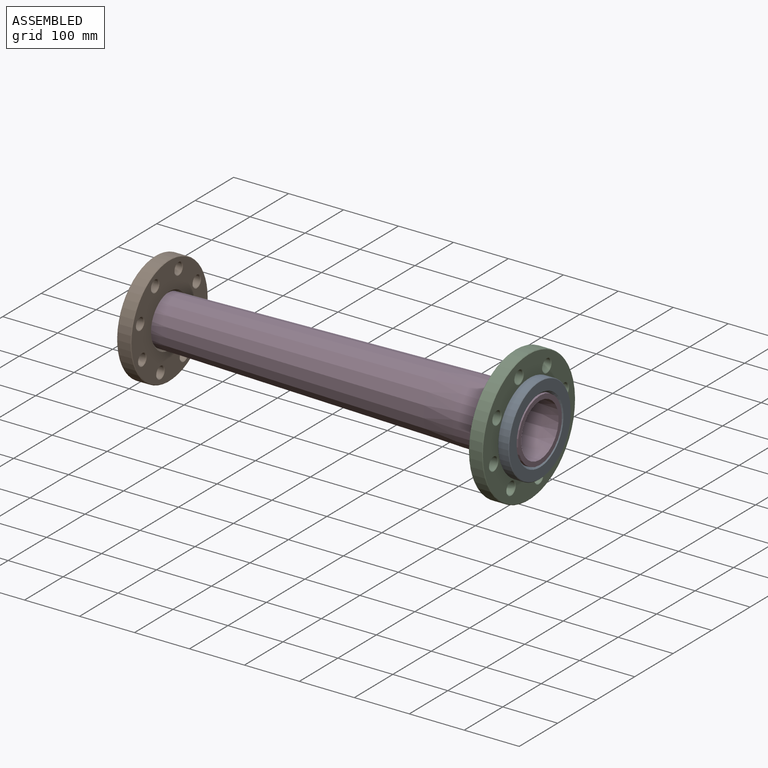
[diagram: assembled view]
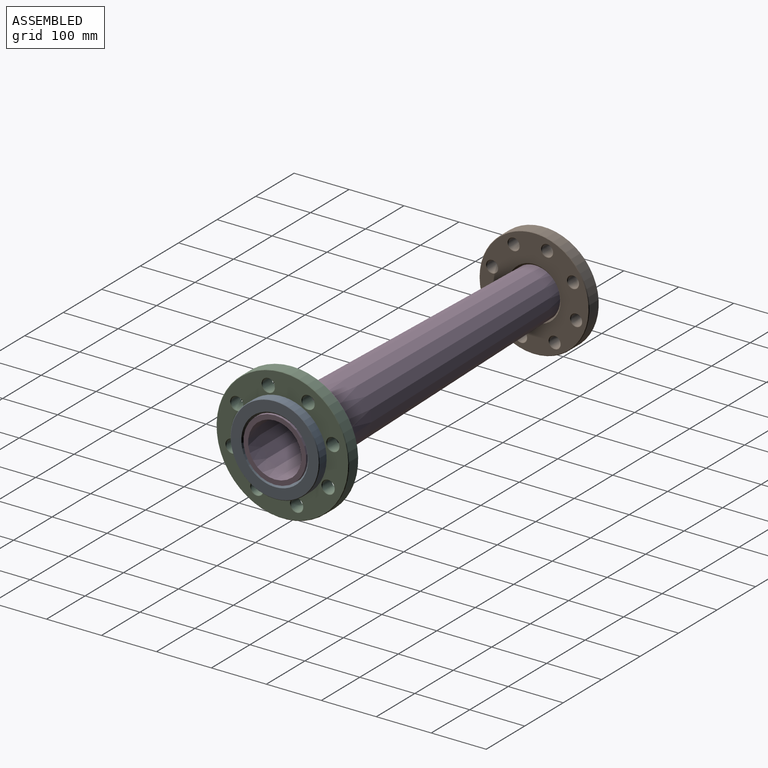
[diagram: assembled view, second angle]
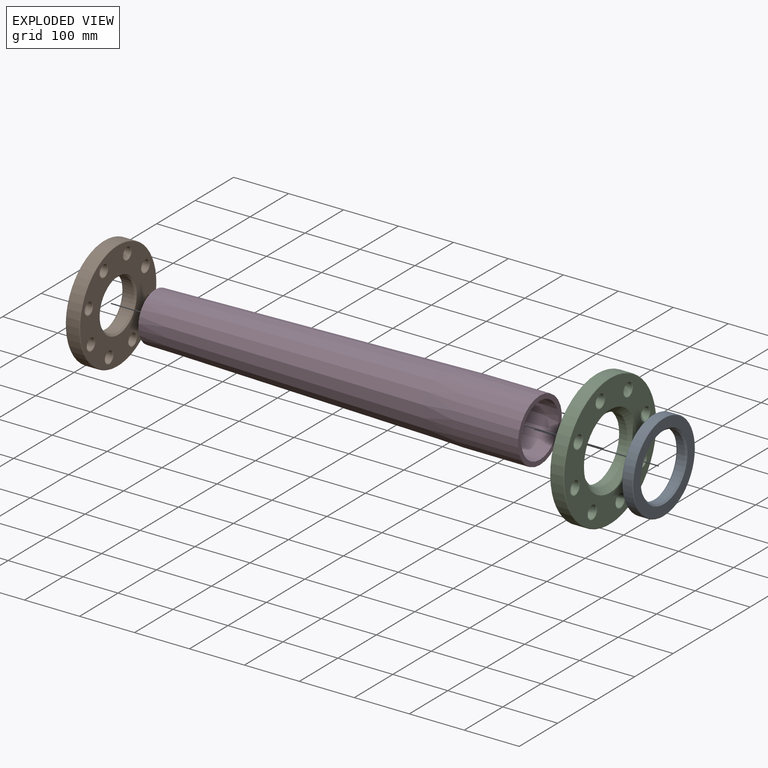
[diagram: exploded view]
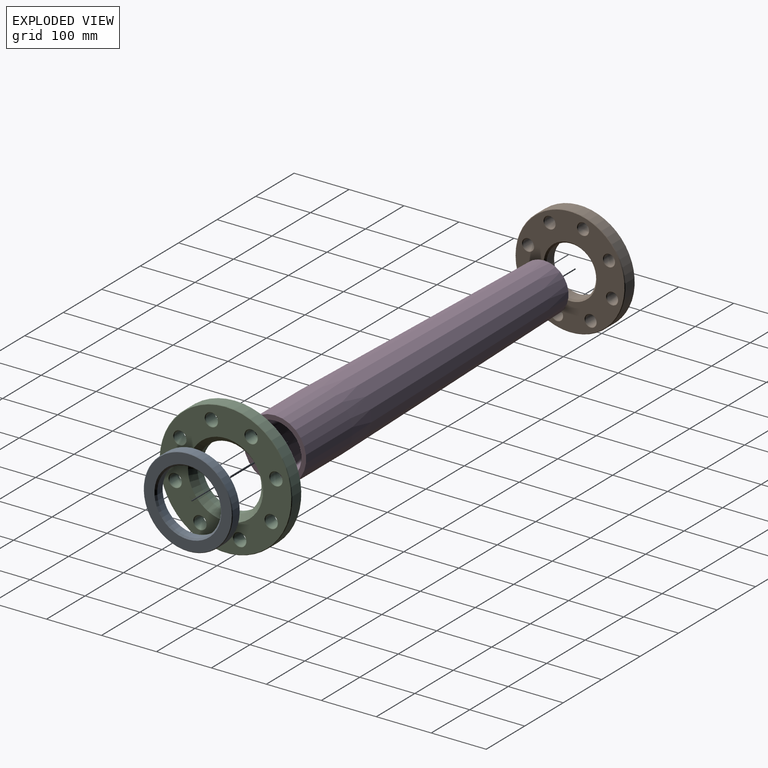
[diagram: exploded view, second angle]
ASSEMBLY  parts=4 mates=6
PART A: 8 faces, bbox 20x162x162 mm
  f0: cylinder r=57.95mm len=115.9mm, axis (-1,0,0), area 5097.5mm2, adj f4,f5
  f1: cylinder r=81mm len=162mm, axis (-1,0,0), area 9160.9mm2, adj f6,f7
  f2: plane 160x160mm, normal (1,0,0), area 8435.5mm2, adj f4,f6
  f3: plane 160x160mm, normal (-1,0,0), area 8435.5mm2, adj f5,f7
  f4: cone r=57.95mm half-angle=45deg, axis (1,0,0), area 1584.8mm2, adj f0,f2
  f5: cone r=60.95mm half-angle=45deg, axis (-1,0,0), area 1584.8mm2, adj f0,f3
  f6: cone r=80mm half-angle=45deg, axis (-1,0,0), area 715.3mm2, adj f1,f2
  f7: cone r=81mm half-angle=45deg, axis (1,0,0), area 715.3mm2, adj f1,f3
PART B: 32 faces, bbox 26x200x200 mm
  f0: cylinder r=10mm len=24mm, axis (-1,0,0), area 1508mm2, adj f26,f27
  f1: cylinder r=10mm len=24mm, axis (-1,0,0), area 1508mm2, adj f12,f13
  f2: cylinder r=10mm len=24mm, axis (-1,0,0), area 1508mm2, adj f14,f15
  f3: cylinder r=10mm len=24mm, axis (-1,0,0), area 1508mm2, adj f16,f17
  f4: cylinder r=10mm len=24mm, axis (-1,0,0), area 1508mm2, adj f18,f19
  f5: cylinder r=10mm len=24mm, axis (-1,0,0), area 1508mm2, adj f20,f21
  f6: cylinder r=10mm len=24mm, axis (-1,0,0), area 1508mm2, adj f22,f23
  f7: cylinder r=10mm len=24mm, axis (-1,0,0), area 1508mm2, adj f24,f25
  f8: cylinder r=45.25mm len=90.5mm, axis (-1,0,0), area 5686.3mm2, adj f30,f31
  f9: cylinder r=100mm len=200mm, axis (-1,0,0), area 15079.6mm2, adj f28,f29
  f10: plane 198x198mm, normal (1,0,0), area 20435.9mm2, adj f12,f14,f16,f18,f20,f22,f24,f26
  f11: plane 198x198mm, normal (-1,0,0), area 20435.9mm2, adj f13,f15,f17,f19,f21,f23,f25,f27
  f12: cone r=10mm half-angle=45deg, axis (1,0,0), area 93.3mm2, adj f1,f10
  f13: cone r=11mm half-angle=45deg, axis (-1,0,0), area 93.3mm2, adj f1,f11
  f14: cone r=10mm half-angle=45deg, axis (1,0,0), area 93.3mm2, adj f2,f10
  f15: cone r=11mm half-angle=45deg, axis (-1,0,0), area 93.3mm2, adj f2,f11
  f16: cone r=10mm half-angle=45deg, axis (1,0,0), area 93.3mm2, adj f3,f10
  f17: cone r=11mm half-angle=45deg, axis (-1,0,0), area 93.3mm2, adj f3,f11
  f18: cone r=10mm half-angle=45deg, axis (1,0,0), area 93.3mm2, adj f4,f10
  f19: cone r=11mm half-angle=45deg, axis (-1,0,0), area 93.3mm2, adj f4,f11
  f20: cone r=10mm half-angle=45deg, axis (1,0,0), area 93.3mm2, adj f5,f10
  f21: cone r=11mm half-angle=45deg, axis (-1,0,0), area 93.3mm2, adj f5,f11
  f22: cone r=10mm half-angle=45deg, axis (1,0,0), area 93.3mm2, adj f6,f10
  f23: cone r=11mm half-angle=45deg, axis (-1,0,0), area 93.3mm2, adj f6,f11
  f24: cone r=10mm half-angle=45deg, axis (1,0,0), area 93.3mm2, adj f7,f10
  f25: cone r=11mm half-angle=45deg, axis (-1,0,0), area 93.3mm2, adj f7,f11
  f26: cone r=10mm half-angle=45deg, axis (1,0,0), area 93.3mm2, adj f0,f10
  f27: cone r=11mm half-angle=45deg, axis (-1,0,0), area 93.3mm2, adj f0,f11
  f28: cone r=99mm half-angle=45deg, axis (-1,0,0), area 884.1mm2, adj f9,f10
  f29: cone r=100mm half-angle=45deg, axis (1,0,0), area 884.1mm2, adj f9,f11
  f30: cone r=45.25mm half-angle=45deg, axis (1,0,0), area 1246.2mm2, adj f8,f10
  f31: cone r=48.25mm half-angle=45deg, axis (-1,0,0), area 1246.2mm2, adj f8,f11
PART C: 32 faces, bbox 25.4x241.3x241.3 mm
  f0: cylinder r=11.11mm len=23.4mm, axis (-1,0,0), area 1633.8mm2, adj f28,f29
  f1: cylinder r=11.11mm len=23.4mm, axis (-1,0,0), area 1633.8mm2, adj f24,f25
  f2: cylinder r=11.11mm len=23.4mm, axis (-1,0,0), area 1633.8mm2, adj f22,f23
  f3: cylinder r=11.11mm len=23.4mm, axis (-1,0,0), area 1633.8mm2, adj f20,f21
  f4: cylinder r=11.11mm len=23.4mm, axis (-1,0,0), area 1633.8mm2, adj f18,f19
  f5: cylinder r=11.11mm len=23.4mm, axis (-1,0,0), area 1633.8mm2, adj f16,f17
  f6: cylinder r=11.11mm len=23.4mm, axis (-1,0,0), area 1633.8mm2, adj f14,f15
  f7: cylinder r=11.11mm len=23.4mm, axis (-1,0,0), area 1633.8mm2, adj f26,f27
  f8: cylinder r=58.42mm len=116.84mm, axis (-1,0,0), area 5285.7mm2, adj f12,f13
  f9: cylinder r=120.65mm len=241.3mm, axis (-1,0,0), area 17738.8mm2, adj f30,f31
  f10: plane 239.3x239.3mm, normal (1,0,0), area 26581.4mm2, adj f12,f14,f16,f18,f20,f22,f24,f26
  f11: plane 239.3x239.3mm, normal (-1,0,0), area 30196mm2, adj f13,f15,f17,f19,f21,f23,f25,f27
  f12: cone r=58.42mm half-angle=45deg, axis (1,0,0), area 5635.4mm2, adj f8,f10
  f13: cone r=59.42mm half-angle=45deg, axis (-1,0,0), area 523.5mm2, adj f8,f11
  f14: cone r=11.11mm half-angle=45deg, axis (1,0,0), area 103.2mm2, adj f6,f10
  f15: cone r=12.11mm half-angle=45deg, axis (-1,0,0), area 103.2mm2, adj f6,f11
  f16: cone r=11.11mm half-angle=45deg, axis (1,0,0), area 103.2mm2, adj f5,f10
  f17: cone r=12.11mm half-angle=45deg, axis (-1,0,0), area 103.2mm2, adj f5,f11
  f18: cone r=11.11mm half-angle=45deg, axis (1,0,0), area 103.2mm2, adj f4,f10
  f19: cone r=12.11mm half-angle=45deg, axis (-1,0,0), area 103.2mm2, adj f4,f11
  f20: cone r=11.11mm half-angle=45deg, axis (1,0,0), area 103.2mm2, adj f3,f10
  f21: cone r=12.11mm half-angle=45deg, axis (-1,0,0), area 103.2mm2, adj f3,f11
  f22: cone r=11.11mm half-angle=45deg, axis (1,0,0), area 103.2mm2, adj f2,f10
  f23: cone r=12.11mm half-angle=45deg, axis (-1,0,0), area 103.2mm2, adj f2,f11
  f24: cone r=11.11mm half-angle=45deg, axis (1,0,0), area 103.2mm2, adj f1,f10
  f25: cone r=12.11mm half-angle=45deg, axis (-1,0,0), area 103.2mm2, adj f1,f11
  f26: cone r=11.11mm half-angle=45deg, axis (1,0,0), area 103.2mm2, adj f7,f10
  f27: cone r=12.11mm half-angle=45deg, axis (-1,0,0), area 103.2mm2, adj f7,f11
  f28: cone r=11.11mm half-angle=45deg, axis (1,0,0), area 103.2mm2, adj f0,f10
  f29: cone r=12.11mm half-angle=45deg, axis (-1,0,0), area 103.2mm2, adj f0,f11
  f30: cone r=120.65mm half-angle=45deg, axis (1,0,0), area 1067.6mm2, adj f9,f11
  f31: cone r=119.65mm half-angle=45deg, axis (-1,0,0), area 1067.6mm2, adj f9,f10
PART D: 6 faces, bbox 700x114.3x114.3 mm
  f0: cone r=48.55mm half-angle=0deg, axis (1,0,0), area 36605.1mm2, adj f1,f5
  f1: plane 114.3x114.3mm, normal (1,0,0), area 2855.8mm2, adj f0,f2
  f2: cylinder r=57.15mm len=120mm, axis (1,0,0), area 43090.1mm2, adj f1,f3
  f3: cone r=57.15mm half-angle=1.3deg, axis (1,0,0), area 185172.1mm2, adj f2,f4
  f4: plane 88.9x88.9mm, normal (-1,0,0), area 2170mm2, adj f3,f5
  f5: cone r=35.85mm half-angle=1.3deg, axis (1,0,0), area 153816.6mm2, adj f0,f4
PLACE A t=(328.33,-0.91,0.08)mm
PLACE B rot(axis=(1,0,0),27.8deg) t=(-351.67,-0.91,0.08)mm
PLACE C rot(axis=(1,0,0),150.7deg) t=(302.93,-0.91,0.08)mm
PLACE D t=(348.33,-0.91,0.08)mm fixed
MATE cylindrical B.f8 <-> D.f0  axis (-1,0,0) through (-338.67,-0.91,0.08)mm
MATE planar B.f9 <-> D.f0  axis (-1,0,0) through (-351.67,-0.91,0.08)mm
MATE cylindrical A.f0 <-> D.f0  axis (-1,0,0) through (338.33,-0.91,0.08)mm
MATE cylindrical C.f8 <-> D.f0  axis (-1,0,0) through (311.13,-0.91,0.08)mm
MATE planar C.f9 <-> A.f1  axis (1,0,0) through (328.33,-0.91,0.08)mm
MATE planar A.f1 <-> D.f0  axis (1,0,0) through (348.33,-0.91,0.08)mm
